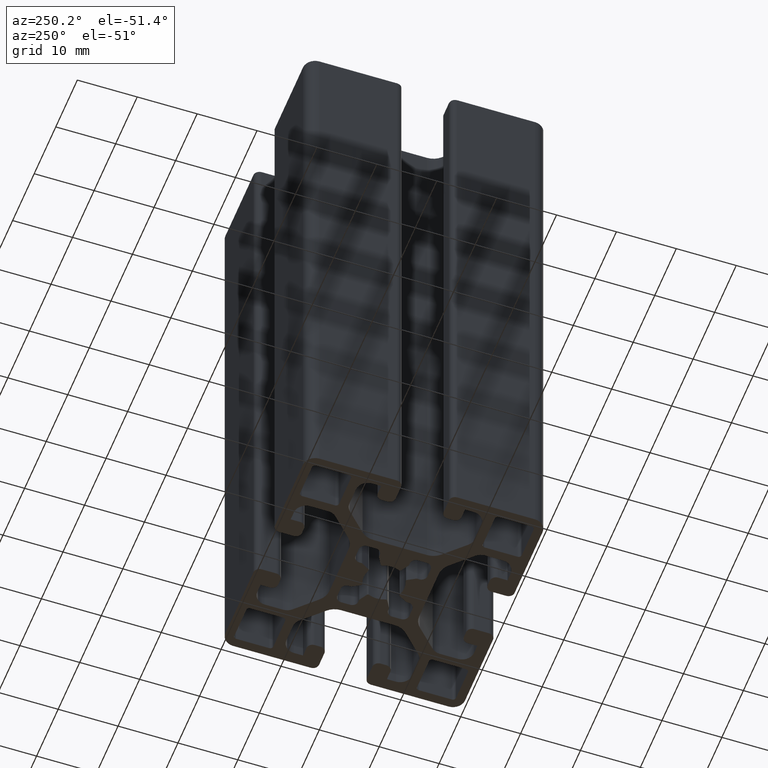
[diagram: clean part render]
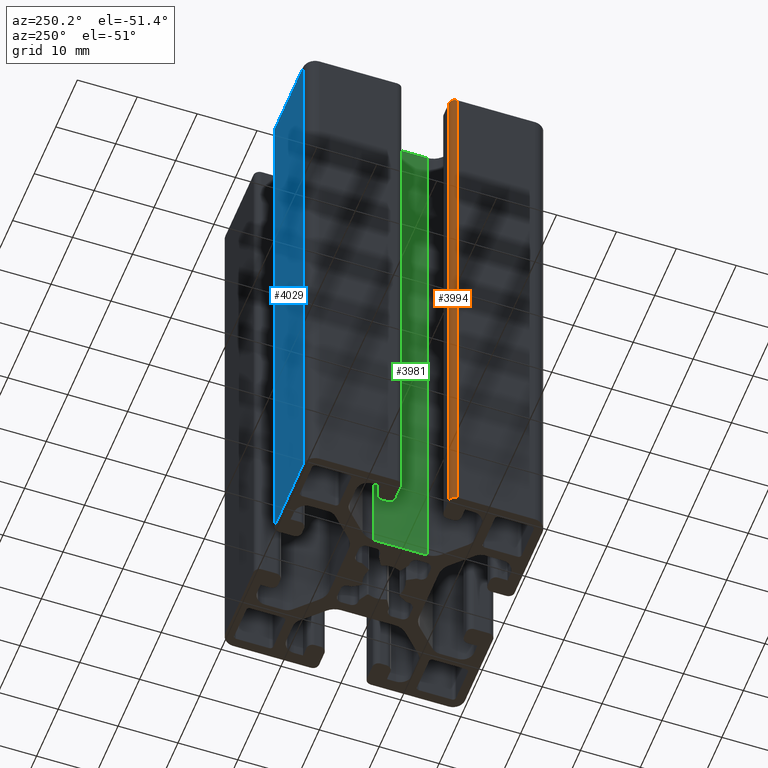
[diagram: same view with three faces highlighted in distinct colors, each labeled with its STEP entity id]
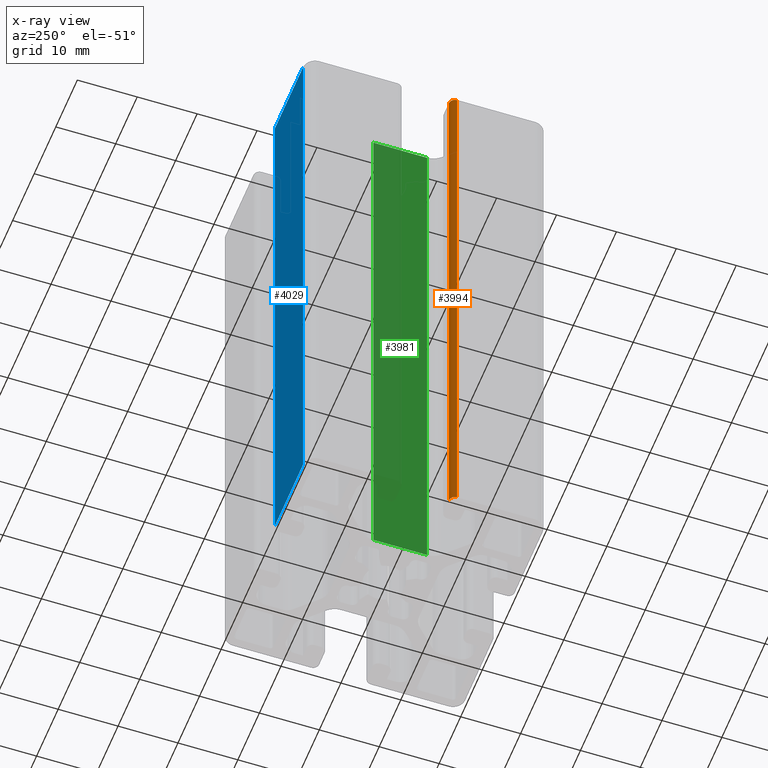
[diagram: x-ray of the same camera — body ghosted, the three highlighted faces saturated]
A machine part, auxiliary view with three faces highlighted in distinct colors.
The next image is the same camera in x-ray (body ghosted, the three faces saturated) — at least one of them is partly hidden behind the body in this view.
Their STEP definitions:

[orange] entity #3994 — the highlighted cylindrical surface (edge-blend (fillet) strip) has radius 1 mm, axis along (0, 0, 1).
#280=FACE_OUTER_BOUND('',#482,.T.);
#482=EDGE_LOOP('',(#3153,#3154,#3155,#3156));
#845=LINE('',#6586,#1245);
#846=LINE('',#6589,#1246);
#1245=VECTOR('',#5379,100.);
#1246=VECTOR('',#5382,100.);
#1499=CIRCLE('',#4357,0.999999999999996);
#1500=CIRCLE('',#4358,0.999999999999996);
#1853=VERTEX_POINT('',#6582);
#1854=VERTEX_POINT('',#6583);
#1855=VERTEX_POINT('',#6585);
#1856=VERTEX_POINT('',#6587);
#2403=EDGE_CURVE('',#1853,#1854,#1499,.T.);
#2404=EDGE_CURVE('',#1855,#1853,#845,.T.);
#2405=EDGE_CURVE('',#1856,#1855,#1500,.T.);
#2406=EDGE_CURVE('',#1854,#1856,#846,.T.);
#3153=ORIENTED_EDGE('',*,*,#2403,.F.);
#3154=ORIENTED_EDGE('',*,*,#2404,.F.);
#3155=ORIENTED_EDGE('',*,*,#2405,.F.);
#3156=ORIENTED_EDGE('',*,*,#2406,.F.);
#3820=CYLINDRICAL_SURFACE('',#4356,0.999999999999996);
#3994=ADVANCED_FACE('',(#280),#3820,.T.);
#4356=AXIS2_PLACEMENT_3D('',#6581,#5375,#5376);
#4357=AXIS2_PLACEMENT_3D('',#6584,#5377,#5378);
#4358=AXIS2_PLACEMENT_3D('',#6588,#5380,#5381);
#5375=DIRECTION('center_axis',(0.,0.,1.));
#5376=DIRECTION('ref_axis',(8.88178419700121E-15,-1.,0.));
#5377=DIRECTION('center_axis',(0.,0.,1.));
#5378=DIRECTION('ref_axis',(8.88178419700121E-15,-1.,0.));
#5379=DIRECTION('',(0.,0.,1.));
#5380=DIRECTION('center_axis',(0.,0.,-1.));
#5381=DIRECTION('ref_axis',(8.88178419700121E-15,-1.,0.));
#5382=DIRECTION('',(0.,0.,-1.));
#6581=CARTESIAN_POINT('Origin',(-18.999993,-5.00000600000001,0.));
#6582=CARTESIAN_POINT('',(-18.999993,-4.00000600000001,100.));
#6583=CARTESIAN_POINT('',(-20.,-5.000006,100.));
#6584=CARTESIAN_POINT('Origin',(-18.999993,-5.00000600000001,100.));
#6585=CARTESIAN_POINT('',(-18.999993,-4.00000600000001,0.));
#6586=CARTESIAN_POINT('',(-18.999993,-4.00000600000001,0.));
#6587=CARTESIAN_POINT('',(-20.,-5.000006,0.));
#6588=CARTESIAN_POINT('Origin',(-18.999993,-5.00000600000001,0.));
#6589=CARTESIAN_POINT('',(-20.,-5.00000600000001,0.));

[blue] entity #4029 — the highlighted planar face has unit normal (0, 1, 0).
#117=PLANE('',#4425);
#315=FACE_OUTER_BOUND('',#517,.T.);
#517=EDGE_LOOP('',(#3293,#3294,#3295,#3296));
#742=LINE('',#6283,#1142);
#917=LINE('',#6796,#1317);
#918=LINE('',#6798,#1318);
#919=LINE('',#6799,#1319);
#1142=VECTOR('',#5082,100.);
#1317=VECTOR('',#5587,13.000007);
#1318=VECTOR('',#5588,100.);
#1319=VECTOR('',#5589,13.000007);
#1750=VERTEX_POINT('',#6277);
#1752=VERTEX_POINT('',#6281);
#1925=VERTEX_POINT('',#6795);
#1926=VERTEX_POINT('',#6797);
#2254=EDGE_CURVE('',#1750,#1752,#742,.T.);
#2509=EDGE_CURVE('',#1925,#1752,#917,.T.);
#2510=EDGE_CURVE('',#1925,#1926,#918,.T.);
#2511=EDGE_CURVE('',#1926,#1750,#919,.T.);
#3293=ORIENTED_EDGE('',*,*,#2254,.T.);
#3294=ORIENTED_EDGE('',*,*,#2509,.F.);
#3295=ORIENTED_EDGE('',*,*,#2510,.T.);
#3296=ORIENTED_EDGE('',*,*,#2511,.T.);
#4029=ADVANCED_FACE('',(#315),#117,.T.);
#4425=AXIS2_PLACEMENT_3D('',#6794,#5585,#5586);
#5082=DIRECTION('',(0.,0.,-1.));
#5585=DIRECTION('center_axis',(0.,1.,0.));
#5586=DIRECTION('ref_axis',(-1.,0.,0.));
#5587=DIRECTION('',(1.,0.,0.));
#5588=DIRECTION('',(0.,0.,1.));
#5589=DIRECTION('',(1.,0.,0.));
#6277=CARTESIAN_POINT('',(-4.99999299999998,20.,100.));
#6281=CARTESIAN_POINT('',(-4.99999299999998,20.,0.));
#6283=CARTESIAN_POINT('',(-4.99999299999998,20.,0.));
#6794=CARTESIAN_POINT('Origin',(18.,20.,0.));
#6795=CARTESIAN_POINT('',(-18.,20.,0.));
#6796=CARTESIAN_POINT('',(9.,20.,0.));
#6797=CARTESIAN_POINT('',(-18.,20.,100.));
#6798=CARTESIAN_POINT('',(-18.,20.,0.));
#6799=CARTESIAN_POINT('',(9.,20.,100.));

[green] entity #3981 — the highlighted planar face has unit normal (1, 0, 0).
#92=PLANE('',#4331);
#267=FACE_OUTER_BOUND('',#469,.T.);
#469=EDGE_LOOP('',(#3101,#3102,#3103,#3104));
#817=LINE('',#6501,#1217);
#818=LINE('',#6505,#1218);
#819=LINE('',#6507,#1219);
#820=LINE('',#6508,#1220);
#1217=VECTOR('',#5295,100.);
#1218=VECTOR('',#5300,8.97918471982869);
#1219=VECTOR('',#5301,100.);
#1220=VECTOR('',#5302,8.97918471982869);
#1825=VERTEX_POINT('',#6498);
#1826=VERTEX_POINT('',#6500);
#1827=VERTEX_POINT('',#6504);
#1828=VERTEX_POINT('',#6506);
#2362=EDGE_CURVE('',#1826,#1825,#817,.T.);
#2364=EDGE_CURVE('',#1827,#1825,#818,.T.);
#2365=EDGE_CURVE('',#1828,#1827,#819,.T.);
#2366=EDGE_CURVE('',#1826,#1828,#820,.T.);
#3101=ORIENTED_EDGE('',*,*,#2364,.F.);
#3102=ORIENTED_EDGE('',*,*,#2365,.F.);
#3103=ORIENTED_EDGE('',*,*,#2366,.F.);
#3104=ORIENTED_EDGE('',*,*,#2362,.T.);
#3981=ADVANCED_FACE('',(#267),#92,.F.);
#4331=AXIS2_PLACEMENT_3D('',#6503,#5298,#5299);
#5295=DIRECTION('',(0.,0.,1.));
#5298=DIRECTION('center_axis',(1.,0.,0.));
#5299=DIRECTION('ref_axis',(0.,1.,0.));
#5300=DIRECTION('',(0.,-1.,0.));
#5301=DIRECTION('',(0.,0.,1.));
#5302=DIRECTION('',(0.,1.,0.));
#6498=CARTESIAN_POINT('',(-7.49999300000001,-4.48959835991436,100.));
#6500=CARTESIAN_POINT('',(-7.49999300000001,-4.48959835991436,0.));
#6501=CARTESIAN_POINT('',(-7.49999300000001,-4.48959835991436,0.));
#6503=CARTESIAN_POINT('Origin',(-7.49999300000001,-4.48959835991436,0.));
#6504=CARTESIAN_POINT('',(-7.49999300000001,4.48958635991434,100.));
#6505=CARTESIAN_POINT('',(-7.49999300000001,-2.24479917995718,100.));
#6506=CARTESIAN_POINT('',(-7.49999300000001,4.48958635991434,0.));
#6507=CARTESIAN_POINT('',(-7.49999300000001,4.48958635991434,0.));
#6508=CARTESIAN_POINT('',(-7.49999300000001,-2.24479917995718,0.));